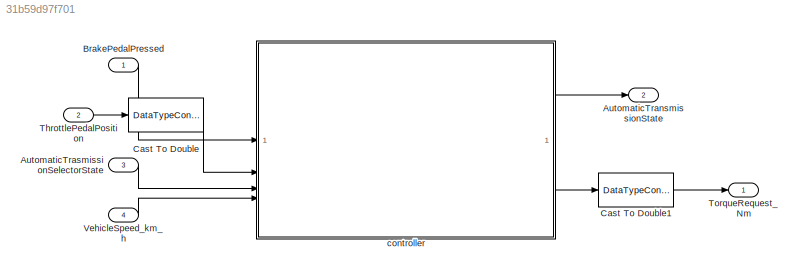
MODEL slx_31b59d97f701
KIND model
CONFIG AbsTol = auto
CONFIG EnableMultiTasking = off
CONFIG FixedStep = 1/100
CONFIG MaxStep = auto
CONFIG MinStep = auto
CONFIG RelTol = 1e-3
CONFIG SampleTimeConstraint = Unconstrained
CONFIG SolverName = FixedStepAuto
CONFIG StartTime = 0.0
CONFIG StopTime = 10.0
BLOCK [Outport] AutomaticTransmissionState
  OutDataTypeStr = Enum: TransmissionState
  Port = 2
BLOCK [Inport] AutomaticTrasmissionSelectorState
  OutDataTypeStr = Enum: TransmissionState
  Port = 3
BLOCK [Inport] BrakePedalPressed
  OutDataTypeStr = boolean
BLOCK [DataTypeConversion] Cast To Double
  OutDataTypeStr = double
  RndMeth = Floor
  SaturateOnIntegerOverflow = off
BLOCK [DataTypeConversion] Cast To Double1
  OutDataTypeStr = single
  RndMeth = Floor
  SaturateOnIntegerOverflow = off
BLOCK [Inport] ThrottlePedalPosition
  OutDataTypeStr = single
  Port = 2
BLOCK [Outport] TorqueRequest_Nm
  OutDataTypeStr = single
  Unit = N*m
BLOCK [Inport] VehicleSpeed_km_h
  OutDataTypeStr = single
  Port = 4
  Unit = km/h
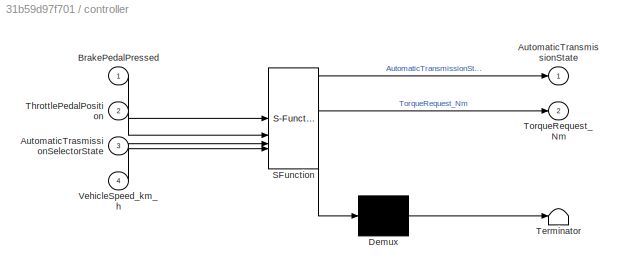
BLOCK [SubSystem] controller
  ErrorFcn = Stateflow.Translate.translate
  PermitHierarchicalResolution = ExplicitOnly
  SFBlockType = Chart
  TreatAsAtomicUnit = on
BLOCK [Demux] controller/ Demux 
  Outputs = 1
BLOCK [S-Function] controller/ SFunction 
  EnableBusSupport = on
  FunctionName = sf_sfun
  Parameters = MAX_TORQUE,MAX_TORQUE_REVERSE
  PortCounts = [4 3]
  SFcnIsStateOwnerBlock = off
  SFunctionDeploymentMode = off
  Tag = Stateflow S-Function 3
BLOCK [Terminator] controller/ Terminator 
BLOCK [Outport] controller/AutomaticTransmissionState
BLOCK [Inport] controller/AutomaticTrasmissionSelectorState
  Port = 3
BLOCK [Inport] controller/BrakePedalPressed
BLOCK [Inport] controller/ThrottlePedalPosition
  Port = 2
BLOCK [Outport] controller/TorqueRequest_Nm
  Port = 2
BLOCK [Inport] controller/VehicleSpeed_km_h
  Port = 4
LINE AutomaticTrasmissionSelectorState:1 -> controller:3
LINE BrakePedalPressed:1 -> controller:1
LINE Cast To Double1:1 -> TorqueRequest_Nm:1
LINE Cast To Double:1 -> controller:2
LINE ThrottlePedalPosition:1 -> Cast To Double:1
LINE VehicleSpeed_km_h:1 -> controller:4
LINE controller:1 -> AutomaticTransmissionState:1
LINE controller:2 -> Cast To Double1:1
CHART controller states=8 transitions=15
  STATE_LABEL 'Park\n\nentry:\nAutomaticTransmissionState = TransmissionState.Park;\nduring:\nTorqueRequest_Nm = 0;'
  STATE_LABEL 'Brake\n\nentry:\nAutomaticTransmissionState = TransmissionState.Brake;'
  STATE_LABEL 'Acceleration\n\nduring:\ncoeff = (3/2) * (ThrottlePedalPosition - 1/3);\nTorqueRequest_Nm = MAX_TORQUE  * coeff;'
  STATE_LABEL 'RegenerativeBraking\n\nduring:\ncoeff = 1 - 3 *ThrottlePedalPosition;\nTorqueRequest_Nm = - MAX_TORQUE * coeff;'
  STATE_LABEL 'EndBreakingRegion\n\nduring:\nTorqueRequest_Nm =0;'
  STATE_LABEL '[ThrottlePedalPosition > 1/3  || abs(VehicleSpeed_km_h)>0.2]'
  STATE_LABEL '[ThrottlePedalPosition <= 1/3 && ThrottlePedalPosition >0]'
  STATE_LABEL '[ThrottlePedalPosition > 1/3 &&ThrottlePedalPosition <=1 ]'
  STATE_LABEL '[VehicleSpeed_km_h <= 0.2]'
  STATE_LABEL 'Acceleration\n\nduring:\ncoeff = (3/2) * (ThrottlePedalPosition - 1/3);\nTorqueRequest_Nm = MAX_TORQUE  * coeff;'
  STATE_LABEL 'RegenerativeBraking\n\nduring:\ncoeff = 1 - 3 *ThrottlePedalPosition;\nTorqueRequest_Nm = - MAX_TORQUE * coeff;'
  STATE_LABEL 'EndBreakingRegion\n\nduring:\nTorqueRequest_Nm =0;'
  STATE_LABEL 'Drive\n\nentry:\nAutomaticTransmissionState = TransmissionState.Drive;\nduring:\nTorqueRequest_Nm = ThrottlePedalPosition * MAX_TORQUE;\n'
  STATE_LABEL 'Neutral\n\nentry:\nAutomaticTransmissionState = TransmissionState.Neutral;\nduring:\nTorqueRequest_Nm = 0;\n'
  STATE_LABEL 'Reverse\n\nentry:\nAutomaticTransmissionState = TransmissionState.Reverse;\nduring:\nTorqueRequest_Nm = -ThrottlePedalPosition * MAX_TORQUE_REVERSE;'
CHART  states=0 transitions=0
